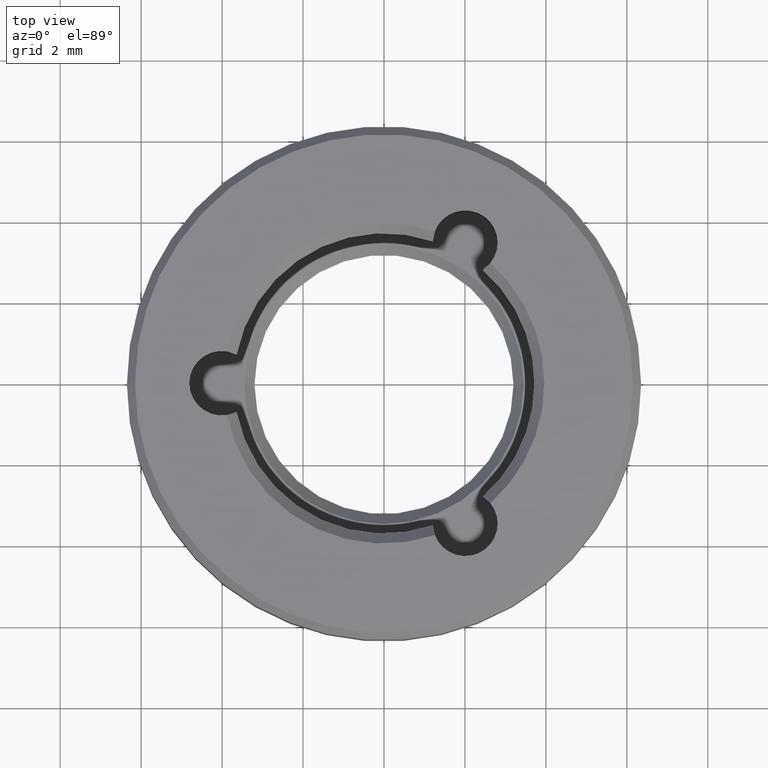
[diagram: clean part render]
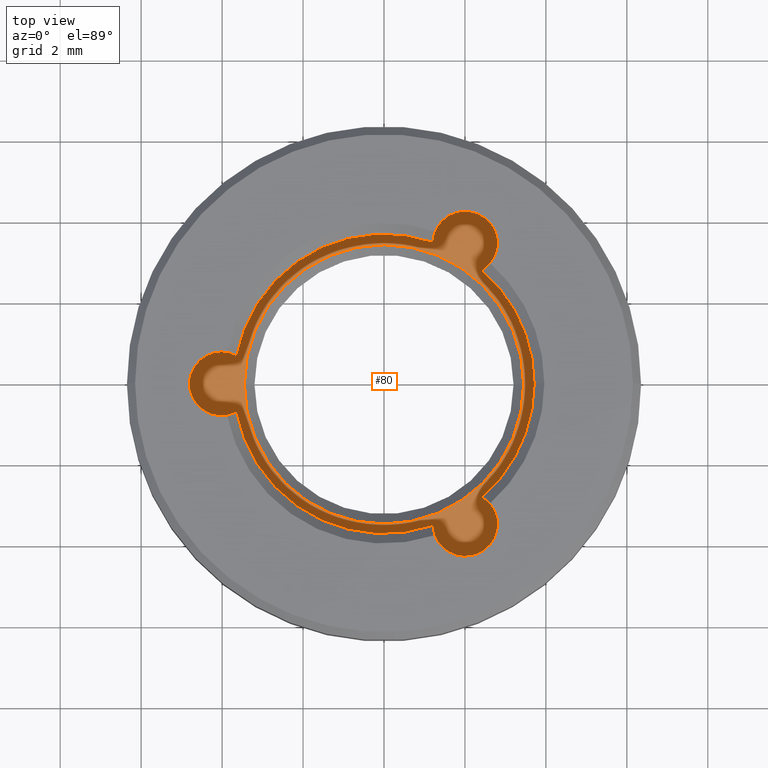
[diagram: same view with one face highlighted and labeled with its STEP entity id]
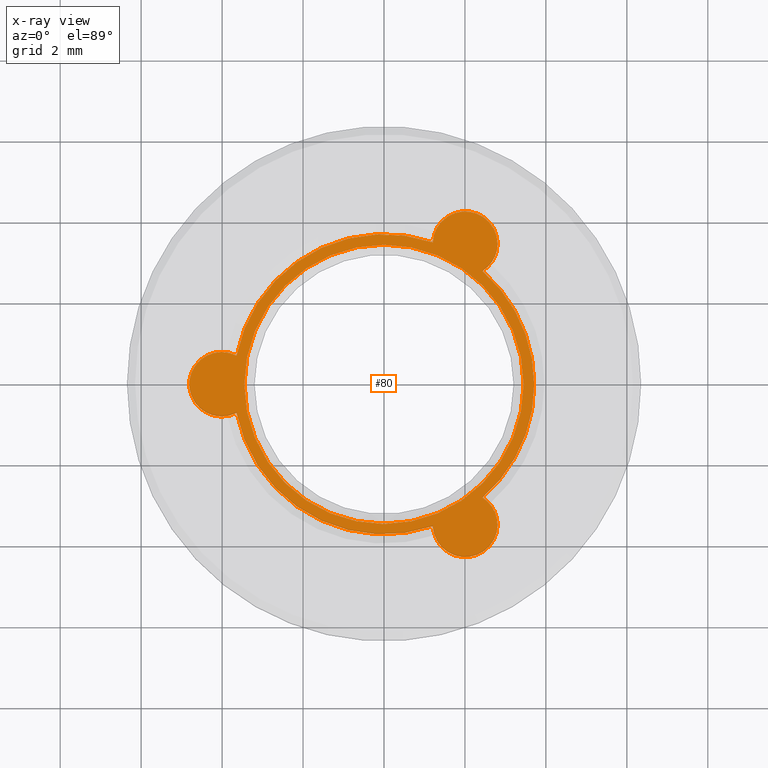
[diagram: x-ray of the same camera — body ghosted, the highlighted face saturated]
A machine part, top view. The second image highlights one B-rep face of the part: STEP entity #80.
The next image is the same camera in x-ray: the body ghosted, the highlighted face saturated — about 0% of this face is hidden behind the body in this view.
In plain terms, the highlighted planar face has unit normal (0, 0, 1).
Its self-contained STEP definition (entity closure, byte-faithful):
#2 = CARTESIAN_POINT ( 'NONE',  ( 0.000000000000000000, 0.000000000000000000, 0.6000000000000000888 ) ) ;
#27 = DIRECTION ( 'NONE',  ( 1.000000000000000000, 0.000000000000000000, 0.000000000000000000 ) ) ;
#31 = CARTESIAN_POINT ( 'NONE',  ( 2.435619161384848130, 2.798545926136458473, 0.5999999999999998668 ) ) ;
#33 = DIRECTION ( 'NONE',  ( -0.000000000000000000, -0.000000000000000000, -1.000000000000000000 ) ) ;
#35 = VERTEX_POINT ( 'NONE', #892 ) ;
#41 = DIRECTION ( 'NONE',  ( 1.000000000000000000, -3.794707603699261575E-15, 0.000000000000000000 ) ) ;
#55 = EDGE_CURVE ( 'NONE', #56, #342, #312, .T. ) ;
#56 = VERTEX_POINT ( 'NONE', #550 ) ;
#60 = CIRCLE ( 'NONE', #592, 3.450000000000001510 ) ;
#72 = DIRECTION ( 'NONE',  ( 1.000000000000000000, 0.000000000000000000, 0.000000000000000000 ) ) ;
#80 = ADVANCED_FACE ( 'NONE', ( #834, #283 ), #141, .T. ) ;
#86 = CARTESIAN_POINT ( 'NONE',  ( -3.641421446384038862, -0.7100351046352345596, 0.6000000000000003109 ) ) ;
#94 = AXIS2_PLACEMENT_3D ( 'NONE', #365, #654, #859 ) ;
#99 = DIRECTION ( 'NONE',  ( 1.000000000000000000, 0.000000000000000000, 0.000000000000000000 ) ) ;
#101 = CARTESIAN_POINT ( 'NONE',  ( -3.641421446384038862, 0.7100351046352334494, 0.6000000000000003109 ) ) ;
#108 = CARTESIAN_POINT ( 'NONE',  ( 1.205802284999181850, -3.508581030771663833, 0.6000000000000003109 ) ) ;
#110 = CARTESIAN_POINT ( 'NONE',  ( 0.000000000000000000, 0.000000000000000000, 0.6000000000000000888 ) ) ;
#111 = EDGE_CURVE ( 'NONE', #342, #686, #183, .T. ) ;
#120 = ORIENTED_EDGE ( 'NONE', *, *, #204, .F. ) ;
#121 = EDGE_CURVE ( 'NONE', #845, #683, #680, .T. ) ;
#122 = AXIS2_PLACEMENT_3D ( 'NONE', #110, #375, #27 ) ;
#141 = PLANE ( 'NONE',  #822 ) ;
#147 = ORIENTED_EDGE ( 'NONE', *, *, #225, .F. ) ;
#161 = ORIENTED_EDGE ( 'NONE', *, *, #111, .F. ) ;
#166 = EDGE_CURVE ( 'NONE', #415, #35, #792, .T. ) ;
#176 = CARTESIAN_POINT ( 'NONE',  ( 2.005000000000016769, -3.472761869175589489, 0.6000000000000003109 ) ) ;
#179 = ORIENTED_EDGE ( 'NONE', *, *, #627, .T. ) ;
#183 = CIRCLE ( 'NONE', #646, 0.8000000000000008216 ) ;
#190 = VERTEX_POINT ( 'NONE', #101 ) ;
#194 = EDGE_CURVE ( 'NONE', #56, #190, #723, .T. ) ;
#203 = CARTESIAN_POINT ( 'NONE',  ( -3.450000000000001510, 4.225031457058370303E-16, 0.6000000000000000888 ) ) ;
#204 = EDGE_CURVE ( 'NONE', #845, #190, #494, .T. ) ;
#211 = DIRECTION ( 'NONE',  ( -0.000000000000000000, -0.000000000000000000, -1.000000000000000000 ) ) ;
#222 = CIRCLE ( 'NONE', #693, 3.450000000000001510 ) ;
#224 = DIRECTION ( 'NONE',  ( 0.000000000000000000, 0.000000000000000000, 1.000000000000000000 ) ) ;
#225 = EDGE_CURVE ( 'NONE', #462, #683, #239, .T. ) ;
#228 = ORIENTED_EDGE ( 'NONE', *, *, #619, .T. ) ;
#239 = CIRCLE ( 'NONE', #531, 0.8000000000000008216 ) ;
#261 = ORIENTED_EDGE ( 'NONE', *, *, #55, .F. ) ;
#283 = FACE_OUTER_BOUND ( 'NONE', #888, .T. ) ;
#299 = CIRCLE ( 'NONE', #467, 0.8000000000000008216 ) ;
#312 = CIRCLE ( 'NONE', #530, 0.8000000000000008216 ) ;
#324 = ORIENTED_EDGE ( 'NONE', *, *, #121, .T. ) ;
#328 = AXIS2_PLACEMENT_3D ( 'NONE', #444, #33, #793 ) ;
#336 = CARTESIAN_POINT ( 'NONE',  ( 2.435619161384887210, -2.798545926136423390, 0.6000000000000003109 ) ) ;
#338 = VERTEX_POINT ( 'NONE', #203 ) ;
#342 = VERTEX_POINT ( 'NONE', #904 ) ;
#360 = DIRECTION ( 'NONE',  ( 1.000000000000000000, 0.000000000000000000, 0.000000000000000000 ) ) ;
#365 = CARTESIAN_POINT ( 'NONE',  ( 0.000000000000000000, 0.000000000000000000, 0.6000000000000000888 ) ) ;
#375 = DIRECTION ( 'NONE',  ( 0.000000000000000000, 0.000000000000000000, 1.000000000000000000 ) ) ;
#379 = CARTESIAN_POINT ( 'NONE',  ( 2.005000000000016769, -3.472761869175589489, 0.6000000000000003109 ) ) ;
#384 = DIRECTION ( 'NONE',  ( 1.000000000000000000, 0.000000000000000000, 0.000000000000000000 ) ) ;
#399 = ORIENTED_EDGE ( 'NONE', *, *, #754, .T. ) ;
#415 = VERTEX_POINT ( 'NONE', #336 ) ;
#418 = AXIS2_PLACEMENT_3D ( 'NONE', #557, #698, #360 ) ;
#424 = DIRECTION ( 'NONE',  ( 1.000000000000000000, 0.000000000000000000, 0.000000000000000000 ) ) ;
#444 = CARTESIAN_POINT ( 'NONE',  ( -4.009999999999999787, -4.910833664580885594E-16, 0.6000000000000003109 ) ) ;
#452 = CARTESIAN_POINT ( 'NONE',  ( 0.000000000000000000, 0.000000000000000000, 0.6000000000000000888 ) ) ;
#462 = VERTEX_POINT ( 'NONE', #469 ) ;
#467 = AXIS2_PLACEMENT_3D ( 'NONE', #176, #799, #41 ) ;
#469 = CARTESIAN_POINT ( 'NONE',  ( 2.805000000000017479, -3.472761869175589489, 0.6000000000000003109 ) ) ;
#486 = DIRECTION ( 'NONE',  ( 1.000000000000000000, 0.000000000000000000, 0.000000000000000000 ) ) ;
#492 = DIRECTION ( 'NONE',  ( -0.000000000000000000, -0.000000000000000000, -1.000000000000000000 ) ) ;
#494 = CIRCLE ( 'NONE', #328, 0.8000000000000008216 ) ;
#499 = CARTESIAN_POINT ( 'NONE',  ( 0.000000000000000000, 0.000000000000000000, 0.6000000000000000888 ) ) ;
#530 = AXIS2_PLACEMENT_3D ( 'NONE', #553, #211, #424 ) ;
#531 = AXIS2_PLACEMENT_3D ( 'NONE', #379, #662, #384 ) ;
#544 = AXIS2_PLACEMENT_3D ( 'NONE', #499, #224, #72 ) ;
#550 = CARTESIAN_POINT ( 'NONE',  ( 1.205802284999131668, 3.508581030771680265, 0.5999999999999998668 ) ) ;
#553 = CARTESIAN_POINT ( 'NONE',  ( 2.004999999999967475, 3.472761869175617910, 0.5999999999999998668 ) ) ;
#557 = CARTESIAN_POINT ( 'NONE',  ( 0.000000000000000000, 0.000000000000000000, 0.6000000000000000888 ) ) ;
#574 = EDGE_LOOP ( 'NONE', ( #228, #399 ) ) ;
#592 = AXIS2_PLACEMENT_3D ( 'NONE', #452, #727, #99 ) ;
#600 = ORIENTED_EDGE ( 'NONE', *, *, #166, .T. ) ;
#619 = EDGE_CURVE ( 'NONE', #716, #338, #222, .T. ) ;
#621 = DIRECTION ( 'NONE',  ( 0.000000000000000000, 0.000000000000000000, 1.000000000000000000 ) ) ;
#627 = EDGE_CURVE ( 'NONE', #35, #686, #811, .T. ) ;
#634 = DIRECTION ( 'NONE',  ( 1.000000000000000000, 0.000000000000000000, -0.000000000000000000 ) ) ;
#646 = AXIS2_PLACEMENT_3D ( 'NONE', #830, #492, #486 ) ;
#654 = DIRECTION ( 'NONE',  ( 0.000000000000000000, 0.000000000000000000, 1.000000000000000000 ) ) ;
#662 = DIRECTION ( 'NONE',  ( -0.000000000000000000, -0.000000000000000000, -1.000000000000000000 ) ) ;
#665 = ORIENTED_EDGE ( 'NONE', *, *, #689, .F. ) ;
#680 = CIRCLE ( 'NONE', #418, 3.709999999999999964 ) ;
#683 = VERTEX_POINT ( 'NONE', #108 ) ;
#686 = VERTEX_POINT ( 'NONE', #31 ) ;
#689 = EDGE_CURVE ( 'NONE', #415, #462, #299, .T. ) ;
#693 = AXIS2_PLACEMENT_3D ( 'NONE', #2, #851, #857 ) ;
#698 = DIRECTION ( 'NONE',  ( 0.000000000000000000, 0.000000000000000000, 1.000000000000000000 ) ) ;
#708 = CARTESIAN_POINT ( 'NONE',  ( 0.000000000000000000, 0.000000000000000000, 0.6000000000000000888 ) ) ;
#716 = VERTEX_POINT ( 'NONE', #876 ) ;
#723 = CIRCLE ( 'NONE', #122, 3.709999999999999964 ) ;
#727 = DIRECTION ( 'NONE',  ( -0.000000000000000000, -0.000000000000000000, -1.000000000000000000 ) ) ;
#754 = EDGE_CURVE ( 'NONE', #338, #716, #60, .T. ) ;
#792 = CIRCLE ( 'NONE', #94, 3.709999999999999964 ) ;
#793 = DIRECTION ( 'NONE',  ( 1.000000000000000000, 0.000000000000000000, 0.000000000000000000 ) ) ;
#799 = DIRECTION ( 'NONE',  ( -0.000000000000000000, -0.000000000000000000, -1.000000000000000000 ) ) ;
#811 = CIRCLE ( 'NONE', #544, 3.709999999999999964 ) ;
#822 = AXIS2_PLACEMENT_3D ( 'NONE', #708, #621, #634 ) ;
#830 = CARTESIAN_POINT ( 'NONE',  ( 2.004999999999967475, 3.472761869175617910, 0.5999999999999998668 ) ) ;
#834 = FACE_BOUND ( 'NONE', #574, .T. ) ;
#845 = VERTEX_POINT ( 'NONE', #86 ) ;
#851 = DIRECTION ( 'NONE',  ( -0.000000000000000000, -0.000000000000000000, -1.000000000000000000 ) ) ;
#857 = DIRECTION ( 'NONE',  ( 1.000000000000000000, 0.000000000000000000, 0.000000000000000000 ) ) ;
#859 = DIRECTION ( 'NONE',  ( 1.000000000000000000, 0.000000000000000000, 0.000000000000000000 ) ) ;
#875 = ORIENTED_EDGE ( 'NONE', *, *, #194, .T. ) ;
#876 = CARTESIAN_POINT ( 'NONE',  ( 3.450000000000001510, 0.000000000000000000, 0.6000000000000000888 ) ) ;
#888 = EDGE_LOOP ( 'NONE', ( #600, #179, #161, #261, #875, #120, #324, #147, #665 ) ) ;
#892 = CARTESIAN_POINT ( 'NONE',  ( 3.709999999999999964, 0.000000000000000000, 0.6000000000000000888 ) ) ;
#904 = CARTESIAN_POINT ( 'NONE',  ( 2.804999999999968185, 3.472761869175617910, 0.5999999999999998668 ) ) ;